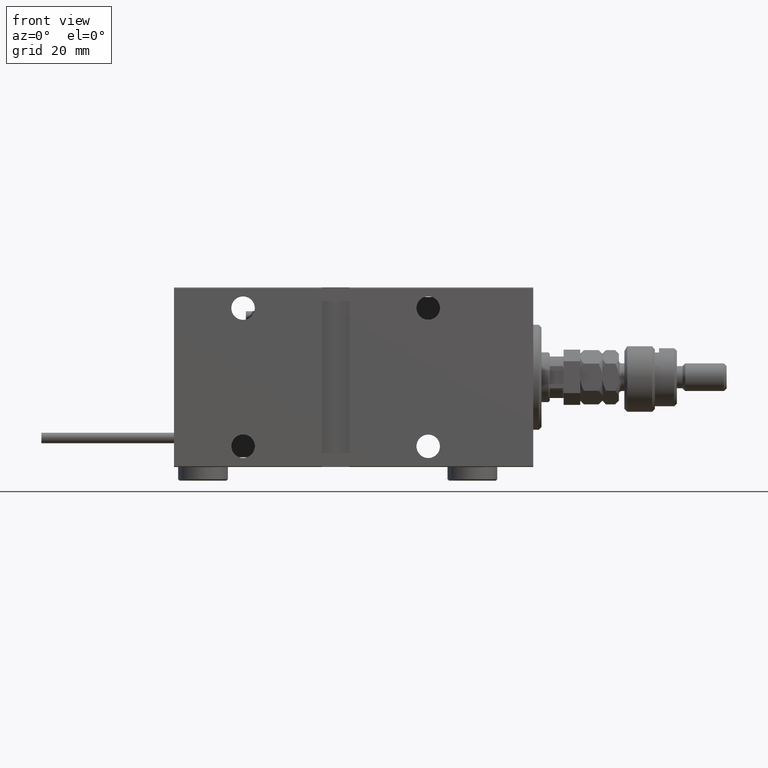
[diagram: clean part render]
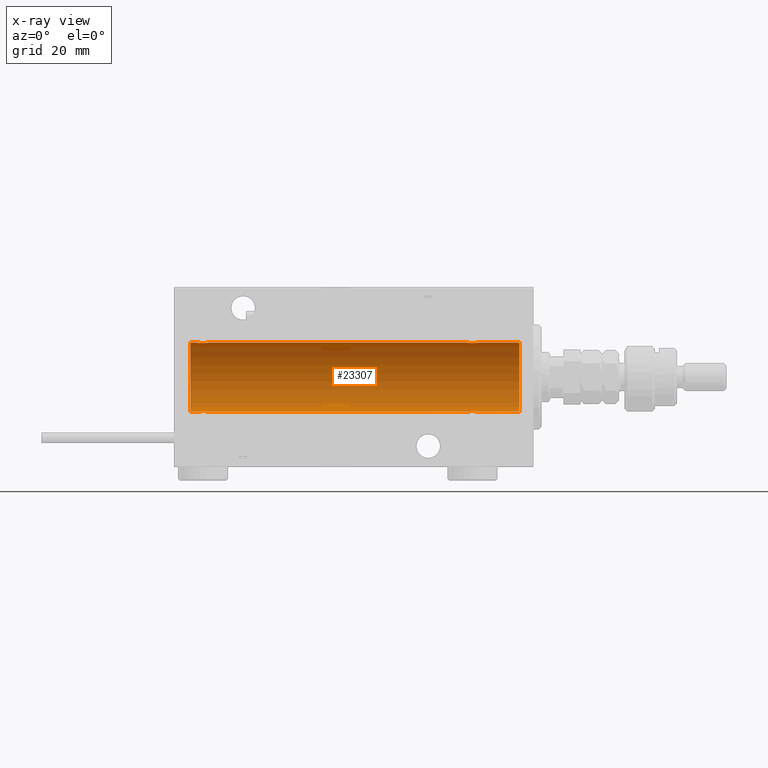
[diagram: x-ray — body ghosted, one internal face saturated and labeled with its STEP entity id]
A machine part, front view, then the same camera in x-ray: the body is ghosted and one INTERNAL B-rep face — a face not visible from any outside direction — is saturated and labeled: STEP entity #23307.
In plain terms, the highlighted cylindrical surface (edge-blend (fillet) strip) has radius 12.5 mm, axis along (1, 0, -0).
Its self-contained STEP definition (entity closure, byte-faithful):
#7 = EDGE_CURVE ( 'NONE', #18536, #1796, #49091, .T. ) ;
#449 = EDGE_CURVE ( 'NONE', #40514, #1387, #14810, .T. ) ;
#1090 = CARTESIAN_POINT ( 'NONE',  ( 19.99999999999999645, -3.966047509268588167E-15, -12.50000000000000000 ) ) ;
#1283 = CARTESIAN_POINT ( 'NONE',  ( 121.5000000000000284, -0.2612140938986731720, -12.50000000000000533 ) ) ;
#1387 = VERTEX_POINT ( 'NONE', #35021 ) ;
#1553 = CARTESIAN_POINT ( 'NONE',  ( 118.9830627330237434, -1.936441098420713214, -12.34912369794528963 ) ) ;
#1586 = CARTESIAN_POINT ( 'NONE',  ( 124.0000000000000000, 1.530808498934191521E-15, -12.50000000000000000 ) ) ;
#1796 = VERTEX_POINT ( 'NONE', #27532 ) ;
#2087 = CARTESIAN_POINT ( 'NONE',  ( 121.2356307801957769, -1.002396200863557185, -12.46022444231050308 ) ) ;
#2123 = LINE ( 'NONE', #1586, #32970 ) ;
#2264 = ORIENTED_EDGE ( 'NONE', *, *, #13662, .T. ) ;
#2598 = B_SPLINE_CURVE_WITH_KNOTS ( 'NONE', 3,
 ( #19893, #52269, #32227, #48668, #15771, #11116, #45110, #24273, #35529, #31421, #27561, #6727, #23458, #40184, #2608, #37441, #20707, #37166, #28669, #4985, #45384, #34602, #13205, #21729, #49500, #25812, #53611, #20434 ),
 .UNSPECIFIED., .F., .F.,
 ( 4, 2, 2, 2, 2, 2, 2, 2, 2, 2, 2, 2, 2, 4 ),
 ( 0.006262980370572162822, 0.007045658964677358610, 0.007436998261729958239, 0.007828337558782557867, 0.008219676855835158363, 0.008611016152887758859, 0.009002355449940359355, 0.009393694746992958117, 0.009785034044045558613, 0.01017637334109815911, 0.01056771263815075960, 0.01095905193520336010, 0.01174173052930856803, 0.01252440912341377596 ),
 .UNSPECIFIED. ) ;
#2608 = CARTESIAN_POINT ( 'NONE',  ( 21.86659749548704212, -1.999916920503819862, 12.33897614545467469 ) ) ;
#2857 = CARTESIAN_POINT ( 'NONE',  ( 119.6308996732342393, -2.000082296475560906, 12.33894933996983490 ) ) ;
#3036 = ORIENTED_EDGE ( 'NONE', *, *, #15565, .F. ) ;
#3127 = CARTESIAN_POINT ( 'NONE',  ( 121.5000000000000568, -0.2646816682749792982, 12.50000000000000178 ) ) ;
#3588 = CARTESIAN_POINT ( 'NONE',  ( 24.00000000000000000, 1.530808426277417854E-15, -12.50000000000000000 ) ) ;
#4867 = FACE_OUTER_BOUND ( 'NONE', #40480, .T. ) ;
#4942 = CARTESIAN_POINT ( 'NONE',  ( 21.35574721202270254, -1.897913903092048216, -12.35518060345725289 ) ) ;
#4985 = CARTESIAN_POINT ( 'NONE',  ( 22.88616153879432957, -1.797736511708064366, 12.37015393445321010 ) ) ;
#5646 = ORIENTED_EDGE ( 'NONE', *, *, #449, .T. ) ;
#6196 = CARTESIAN_POINT ( 'NONE',  ( 118.2814588045806232, -1.591305132013882462, -12.39851226212235957 ) ) ;
#6468 = CARTESIAN_POINT ( 'NONE',  ( 120.8229994310773776, -1.505544071529937078, -12.40934942683854381 ) ) ;
#6703 = CARTESIAN_POINT ( 'NONE',  ( 117.5000000000000142, -7.266434456262306043E-23, 12.50000000000000000 ) ) ;
#6727 = CARTESIAN_POINT ( 'NONE',  ( 21.35356103036408371, -1.897190184049190043, 12.35529285772521391 ) ) ;
#7509 = CARTESIAN_POINT ( 'NONE',  ( 117.9927784853201018, -1.321088093821075393, 12.43033959299025426 ) ) ;
#7730 = VERTEX_POINT ( 'NONE', #26527 ) ;
#8071 = LINE ( 'NONE', #45104, #31199 ) ;
#9050 = CARTESIAN_POINT ( 'NONE',  ( 20.67883287148555382, -1.507135374967702113, -12.40915432986587064 ) ) ;
#9321 = CARTESIAN_POINT ( 'NONE',  ( 21.11383846120565977, -1.797736511708062590, -12.37015393445320299 ) ) ;
#9504 = CARTESIAN_POINT ( 'NONE',  ( 120.7202714989742418, -1.589951752150277509, -12.39868561261689273 ) ) ;
#9663 = CARTESIAN_POINT ( 'NONE',  ( 19.99999999999999645, -7.265724481447607133E-23, 12.50000000000000000 ) ) ;
#10051 = CARTESIAN_POINT ( 'NONE',  ( 120.1464389696359518, -1.897190184049184269, -12.35529285772521391 ) ) ;
#10588 = CARTESIAN_POINT ( 'NONE',  ( 118.8557472120227345, -1.897913903092052657, -12.35518060345725111 ) ) ;
#10641 = B_SPLINE_CURVE_WITH_KNOTS ( 'NONE', 3,
 ( #3588, #16203, #32938, #37327, #12366, #17022, #49666, #45542, #12103, #29366, #46077, #28827, #25237, #50470, #12905, #24697, #29095, #41433, #4942, #9321, #26581, #47416, #9050, #35359, #21945, #22483, #46881, #1090 ),
 .UNSPECIFIED., .F., .F.,
 ( 4, 2, 2, 2, 2, 2, 2, 2, 2, 2, 2, 2, 2, 4 ),
 ( 0.006262980370572176700, 0.007045658964677374222, 0.007436998261729974719, 0.007828337558782575215, 0.008219676855835175711, 0.008611016152887777941, 0.009002355449940378437, 0.009393694746992978933, 0.009785034044045579429, 0.01017637334109817993, 0.01056771263815078042, 0.01095905193520338092, 0.01174173052930859058, 0.01252440912341379851 ),
 .UNSPECIFIED. ) ;
#11116 = CARTESIAN_POINT ( 'NONE',  ( 20.41018909771709744, -1.220538259806348114, 12.44075068685996754 ) ) ;
#11119 = VERTEX_POINT ( 'NONE', #30008 ) ;
#11189 = CARTESIAN_POINT ( 'NONE',  ( 121.5000000000000284, 1.530808426268740384E-15, -12.50000000000000000 ) ) ;
#11958 = CARTESIAN_POINT ( 'NONE',  ( 124.0000000000000000, 0.000000000000000000, 12.50000000000000000 ) ) ;
#12103 = CARTESIAN_POINT ( 'NONE',  ( 23.22027149897420273, -1.589951752150274178, -12.39868561261689273 ) ) ;
#12366 = CARTESIAN_POINT ( 'NONE',  ( 23.73563078019576977, -1.002396200863559628, -12.46022444231050663 ) ) ;
#12905 = CARTESIAN_POINT ( 'NONE',  ( 22.13340250451295077, -1.999916920503817641, -12.33897614545467469 ) ) ;
#13014 = VERTEX_POINT ( 'NONE', #20530 ) ;
#13205 = CARTESIAN_POINT ( 'NONE',  ( 23.32116712851443552, -1.507135374967700114, 12.40915432986586708 ) ) ;
#13233 = DIRECTION ( 'NONE',  ( 0.000000000000000000, 0.000000000000000000, 1.000000000000000000 ) ) ;
#13662 = EDGE_CURVE ( 'NONE', #11119, #18536, #10641, .T. ) ;
#13896 = CARTESIAN_POINT ( 'NONE',  ( 117.5533432010162187, -0.5275951738695822124, -12.49118442338578383 ) ) ;
#14379 = CARTESIAN_POINT ( 'NONE',  ( 24.00000000000000000, -2.019790789754703983E-15, 12.50000000000000000 ) ) ;
#14421 = EDGE_CURVE ( 'NONE', #30619, #17949, #30064, .T. ) ;
#14438 = CARTESIAN_POINT ( 'NONE',  ( 119.7639137310243882, -1.986793270638199882, -12.34112317291865146 ) ) ;
#14679 = CARTESIAN_POINT ( 'NONE',  ( 118.6112527420296772, -1.796480516834681573, 12.37033750336835958 ) ) ;
#14810 = B_SPLINE_CURVE_WITH_KNOTS ( 'NONE', 3,
 ( #23204, #1283, #39390, #18550, #2087, #44036, #43774, #6468, #9504, #30622, #26499, #10051, #22402, #14438, #34749, #35274, #48149, #1553, #10588, #52004, #34480, #6196, #18829, #30360, #35548, #13896, #42955, #52283 ),
 .UNSPECIFIED., .F., .F.,
 ( 4, 2, 2, 2, 2, 2, 2, 2, 2, 2, 2, 2, 2, 4 ),
 ( 0.006262980370572161955, 0.007045658964677351671, 0.007436998261729953902, 0.007828337558782556133, 0.008219676855835158363, 0.008611016152887760594, 0.009002355449940364560, 0.009393694746992966790, 0.009785034044045570756, 0.01017637334109817299, 0.01056771263815077522, 0.01095905193520337745, 0.01174173052930858364, 0.01252440912341378984 ),
 .UNSPECIFIED. ) ;
#14935 = CARTESIAN_POINT ( 'NONE',  ( 117.5000000000000142, -0.2612140938986747818, 12.50000000000000000 ) ) ;
#15208 = CARTESIAN_POINT ( 'NONE',  ( 121.5000000000000284, 3.163483401492493339E-15, 12.50000000000000000 ) ) ;
#15565 = EDGE_CURVE ( 'NONE', #13014, #30619, #52141, .T. ) ;
#15750 = CARTESIAN_POINT ( 'NONE',  ( 118.1770005689227219, -1.505544071529930639, 12.40934942683854025 ) ) ;
#15771 = CARTESIAN_POINT ( 'NONE',  ( 20.26436921980423378, -1.002396200863559850, 12.46022444231050841 ) ) ;
#16203 = CARTESIAN_POINT ( 'NONE',  ( 24.00000000000000711, -0.2612140938986742267, -12.50000000000000533 ) ) ;
#16309 = DIRECTION ( 'NONE',  ( -1.000000000000000000, -0.000000000000000000, -0.000000000000000000 ) ) ;
#16690 = EDGE_CURVE ( 'NONE', #31999, #25474, #8071, .T. ) ;
#16827 = DIRECTION ( 'NONE',  ( -1.000000000000000000, -0.000000000000000000, -0.000000000000000000 ) ) ;
#17022 = CARTESIAN_POINT ( 'NONE',  ( 23.58981090228289546, -1.220538259806347225, -12.44075068685997287 ) ) ;
#17626 = DIRECTION ( 'NONE',  ( -1.000000000000000000, 0.000000000000000000, 0.000000000000000000 ) ) ;
#17949 = VERTEX_POINT ( 'NONE', #26795 ) ;
#18358 = ORIENTED_EDGE ( 'NONE', *, *, #25383, .T. ) ;
#18536 = VERTEX_POINT ( 'NONE', #34576 ) ;
#18550 = CARTESIAN_POINT ( 'NONE',  ( 121.2978560646825912, -0.8858253204747998932, -12.46915613403960776 ) ) ;
#18792 = CARTESIAN_POINT ( 'NONE',  ( 121.0974477469102766, -1.231226695485355904, 12.44059298055988450 ) ) ;
#18829 = CARTESIAN_POINT ( 'NONE',  ( 118.1788328714855822, -1.507135374967708552, -12.40915432986586531 ) ) ;
#19063 = CARTESIAN_POINT ( 'NONE',  ( 120.5009979209850997, -1.736403706023266658, 12.37902502246767789 ) ) ;
#19600 = CARTESIAN_POINT ( 'NONE',  ( 121.2466213662089842, -1.008535157355832768, 12.46157701909768178 ) ) ;
#19606 = VECTOR ( 'NONE', #46650, 1000.000000000000000 ) ;
#19893 = CARTESIAN_POINT ( 'NONE',  ( 19.99999999999999645, -7.265724481447607133E-23, 12.50000000000000000 ) ) ;
#19963 = AXIS2_PLACEMENT_3D ( 'NONE', #49866, #21346, #37536 ) ;
#20434 = CARTESIAN_POINT ( 'NONE',  ( 24.00000000000000000, -2.019790789754703983E-15, 12.50000000000000000 ) ) ;
#20530 = CARTESIAN_POINT ( 'NONE',  ( 124.0000000000000000, 1.530808498934191521E-15, -12.50000000000000000 ) ) ;
#20707 = CARTESIAN_POINT ( 'NONE',  ( 22.26093497285606304, -1.987194304939079004, 12.34105826212746138 ) ) ;
#21222 = CARTESIAN_POINT ( 'NONE',  ( 124.0000000000000000, 0.000000000000000000, 12.50000000000000000 ) ) ;
#21346 = DIRECTION ( 'NONE',  ( -1.000000000000000000, -0.000000000000000000, -0.000000000000000000 ) ) ;
#21729 = CARTESIAN_POINT ( 'NONE',  ( 23.59744774691022684, -1.231226695485370337, 12.44059298055987917 ) ) ;
#21945 = CARTESIAN_POINT ( 'NONE',  ( 20.25337863379106551, -1.008535157355842760, -12.46157701909767646 ) ) ;
#22365 = VECTOR ( 'NONE', #46765, 1000.000000000000000 ) ;
#22402 = CARTESIAN_POINT ( 'NONE',  ( 120.0196147235787834, -1.935716533151644825, -12.34923763528285079 ) ) ;
#22483 = CARTESIAN_POINT ( 'NONE',  ( 20.05334320101619738, -0.5275951738695680016, -12.49118442338578561 ) ) ;
#23204 = CARTESIAN_POINT ( 'NONE',  ( 121.5000000000000284, 1.530808426268740384E-15, -12.50000000000000000 ) ) ;
#23307 = ADVANCED_FACE ( 'NONE', ( #4867 ), #42172, .F. ) ;
#23458 = CARTESIAN_POINT ( 'NONE',  ( 21.48038527642126283, -1.935716533151644381, 12.34923763528284901 ) ) ;
#23974 = CARTESIAN_POINT ( 'NONE',  ( 118.8535610303640624, -1.897190184049181161, 12.35529285772521213 ) ) ;
#24229 = CARTESIAN_POINT ( 'NONE',  ( 5.000000000000004441, 0.000000000000000000, 0.000000000000000000 ) ) ;
#24273 = CARTESIAN_POINT ( 'NONE',  ( 20.67700056892266502, -1.505544071529936634, 12.40934942683854025 ) ) ;
#24275 = ORIENTED_EDGE ( 'NONE', *, *, #24669, .T. ) ;
#24462 = ORIENTED_EDGE ( 'NONE', *, *, #47395, .T. ) ;
#24669 = EDGE_CURVE ( 'NONE', #31999, #17949, #40055, .T. ) ;
#24697 = CARTESIAN_POINT ( 'NONE',  ( 21.86910032676576421, -2.000082296475566679, -12.33894933996983490 ) ) ;
#25237 = CARTESIAN_POINT ( 'NONE',  ( 22.51961472357874072, -1.935716533151642604, -12.34923763528285257 ) ) ;
#25383 = EDGE_CURVE ( 'NONE', #1387, #11119, #2123, .T. ) ;
#25474 = VERTEX_POINT ( 'NONE', #14379 ) ;
#25812 = CARTESIAN_POINT ( 'NONE',  ( 23.94665679898379906, -0.5275951738695691118, 12.49118442338578561 ) ) ;
#25821 = LINE ( 'NONE', #42284, #19606 ) ;
#26037 = EDGE_CURVE ( 'NONE', #38032, #7730, #33834, .T. ) ;
#26198 = CARTESIAN_POINT ( 'NONE',  ( 124.0000000000000000, 0.000000000000000000, 12.50000000000000000 ) ) ;
#26499 = CARTESIAN_POINT ( 'NONE',  ( 120.3887472579704223, -1.796480516834683350, -12.37033750336835602 ) ) ;
#26527 = CARTESIAN_POINT ( 'NONE',  ( 5.000000000000004441, 0.000000000000000000, 12.50000000000000000 ) ) ;
#26581 = CARTESIAN_POINT ( 'NONE',  ( 20.99900207901491811, -1.736403706023273097, -12.37902502246767966 ) ) ;
#26795 = CARTESIAN_POINT ( 'NONE',  ( 121.5000000000000284, 3.163483401492493339E-15, 12.50000000000000000 ) ) ;
#27340 = DIRECTION ( 'NONE',  ( -1.000000000000000000, -0.000000000000000000, -0.000000000000000000 ) ) ;
#27532 = CARTESIAN_POINT ( 'NONE',  ( 5.000000000000004441, 1.530808498934191521E-15, -12.50000000000000000 ) ) ;
#27541 = CARTESIAN_POINT ( 'NONE',  ( 117.5525565942766946, -0.5247436444070334716, 12.49130933415156441 ) ) ;
#27561 = CARTESIAN_POINT ( 'NONE',  ( 21.11125274202960256, -1.796480516834689567, 12.37033750336835602 ) ) ;
#28088 = CARTESIAN_POINT ( 'NONE',  ( 118.9803852764212735, -1.935716533151639718, 12.34923763528284546 ) ) ;
#28669 = CARTESIAN_POINT ( 'NONE',  ( 22.64425278797729746, -1.897913903092049104, 12.35518060345724933 ) ) ;
#28827 = CARTESIAN_POINT ( 'NONE',  ( 22.64643896963591985, -1.897190184049187378, -12.35529285772521924 ) ) ;
#28936 = ORIENTED_EDGE ( 'NONE', *, *, #14421, .F. ) ;
#29095 = CARTESIAN_POINT ( 'NONE',  ( 21.73906502714393341, -1.987194304939077671, -12.34105826212746138 ) ) ;
#29172 = CARTESIAN_POINT ( 'NONE',  ( 117.5000000000000142, -7.266434456262306043E-23, 12.50000000000000000 ) ) ;
#29366 = CARTESIAN_POINT ( 'NONE',  ( 23.00345574076691690, -1.734959850168409812, -12.37922718965050528 ) ) ;
#30008 = CARTESIAN_POINT ( 'NONE',  ( 24.00000000000000000, 1.530808426277417854E-15, -12.50000000000000000 ) ) ;
#30064 = LINE ( 'NONE', #26198, #22365 ) ;
#30360 = CARTESIAN_POINT ( 'NONE',  ( 117.9025522530897661, -1.231226695485379219, -12.44059298055988094 ) ) ;
#30619 = VERTEX_POINT ( 'NONE', #11958 ) ;
#30622 = CARTESIAN_POINT ( 'NONE',  ( 120.5034557407669240, -1.734959850168412476, -12.37922718965050528 ) ) ;
#30883 = EDGE_CURVE ( 'NONE', #1796, #7730, #51485, .T. ) ;
#31199 = VECTOR ( 'NONE', #16309, 1000.000000000000000 ) ;
#31421 = CARTESIAN_POINT ( 'NONE',  ( 20.99654425923307599, -1.734959850168413142, 12.37922718965050528 ) ) ;
#31658 = CARTESIAN_POINT ( 'NONE',  ( 120.0169372669763135, -1.936441098420705220, 12.34912369794528786 ) ) ;
#31929 = CARTESIAN_POINT ( 'NONE',  ( 117.7021439353173946, -0.8858253204748003373, 12.46915613403960421 ) ) ;
#31999 = VERTEX_POINT ( 'NONE', #29172 ) ;
#32227 = CARTESIAN_POINT ( 'NONE',  ( 20.05255659427669812, -0.5247436444070349149, 12.49130933415156974 ) ) ;
#32490 = DIRECTION ( 'NONE',  ( 0.000000000000000000, 0.000000000000000000, 1.000000000000000000 ) ) ;
#32938 = CARTESIAN_POINT ( 'NONE',  ( 23.94744340572329833, -0.5247436444070325834, -12.49130933415156619 ) ) ;
#32970 = VECTOR ( 'NONE', #27340, 1000.000000000000000 ) ;
#33834 = LINE ( 'NONE', #21222, #35511 ) ;
#34480 = CARTESIAN_POINT ( 'NONE',  ( 118.4990020790149146, -1.736403706023274651, -12.37902502246767611 ) ) ;
#34576 = CARTESIAN_POINT ( 'NONE',  ( 19.99999999999999645, -3.966047509268588167E-15, -12.50000000000000000 ) ) ;
#34602 = CARTESIAN_POINT ( 'NONE',  ( 23.21854119541937678, -1.591305132013879131, 12.39851226212236135 ) ) ;
#34749 = CARTESIAN_POINT ( 'NONE',  ( 119.6334025045129863, -1.999916920503819862, -12.33897614545467469 ) ) ;
#34992 = ORIENTED_EDGE ( 'NONE', *, *, #26037, .F. ) ;
#35021 = CARTESIAN_POINT ( 'NONE',  ( 117.5000000000000142, -1.169483437805093529E-14, -12.50000000000000000 ) ) ;
#35274 = CARTESIAN_POINT ( 'NONE',  ( 119.3691003267658459, -2.000082296475571120, -12.33894933996983134 ) ) ;
#35359 = CARTESIAN_POINT ( 'NONE',  ( 20.40255225308977671, -1.231226695485372336, -12.44059298055988627 ) ) ;
#35511 = VECTOR ( 'NONE', #16827, 1000.000000000000000 ) ;
#35512 = AXIS2_PLACEMENT_3D ( 'NONE', #41256, #44824, #32490 ) ;
#35529 = CARTESIAN_POINT ( 'NONE',  ( 20.77972850102579372, -1.589951752150277953, 12.39868561261689095 ) ) ;
#35548 = CARTESIAN_POINT ( 'NONE',  ( 117.7533786337911152, -1.008535157355854750, -12.46157701909767823 ) ) ;
#35784 = CARTESIAN_POINT ( 'NONE',  ( 118.2797285010258008, -1.589951752150278397, 12.39868561261688740 ) ) ;
#36047 = CARTESIAN_POINT ( 'NONE',  ( 119.2360862689757113, -1.986793270638193443, 12.34112317291865146 ) ) ;
#36601 = CARTESIAN_POINT ( 'NONE',  ( 120.8211671285144604, -1.507135374967687458, 12.40915432986586886 ) ) ;
#37166 = CARTESIAN_POINT ( 'NONE',  ( 22.51693726697628506, -1.936441098420709439, 12.34912369794528786 ) ) ;
#37327 = CARTESIAN_POINT ( 'NONE',  ( 23.79785606468258052, -0.8858253204748001153, -12.46915613403960954 ) ) ;
#37441 = CARTESIAN_POINT ( 'NONE',  ( 22.13089967323422158, -2.000082296475567567, 12.33894933996983134 ) ) ;
#37536 = DIRECTION ( 'NONE',  ( 0.000000000000000000, 0.000000000000000000, 1.000000000000000000 ) ) ;
#38032 = VERTEX_POINT ( 'NONE', #9663 ) ;
#38493 = ORIENTED_EDGE ( 'NONE', *, *, #52226, .T. ) ;
#39390 = CARTESIAN_POINT ( 'NONE',  ( 121.4474434057233339, -0.5247436444070315842, -12.49130933415156797 ) ) ;
#39894 = CARTESIAN_POINT ( 'NONE',  ( 117.9101890977171223, -1.220538259806350778, 12.44075068685996754 ) ) ;
#40055 = B_SPLINE_CURVE_WITH_KNOTS ( 'NONE', 3,
 ( #6703, #14935, #27541, #31929, #53319, #39894, #7509, #15750, #35784, #53047, #14679, #23974, #28088, #36047, #40430, #2857, #43994, #31658, #52776, #45090, #19063, #52242, #36601, #18792, #19600, #44268, #3127, #15208 ),
 .UNSPECIFIED., .F., .F.,
 ( 4, 2, 2, 2, 2, 2, 2, 2, 2, 2, 2, 2, 2, 4 ),
 ( 0.006262980370572151546, 0.007045658964677331722, 0.007436998261729929616, 0.007828337558782528377, 0.008219676855835125404, 0.008611016152887724165, 0.009002355449940321191, 0.009393694746992919953, 0.009785034044045518714, 0.01017637334109811748, 0.01056771263815071624, 0.01095905193520331326, 0.01174173052930854028, 0.01252440912341376555 ),
 .UNSPECIFIED. ) ;
#40184 = CARTESIAN_POINT ( 'NONE',  ( 21.73608626897564733, -1.986793270638199882, 12.34112317291865146 ) ) ;
#40322 = CARTESIAN_POINT ( 'NONE',  ( 124.0000000000000000, 1.530808498934191521E-15, -12.50000000000000000 ) ) ;
#40430 = CARTESIAN_POINT ( 'NONE',  ( 119.3665974954870705, -1.999916920503812534, 12.33897614545467647 ) ) ;
#40480 = EDGE_LOOP ( 'NONE', ( #3036, #24462, #5646, #18358, #2264, #47243, #50012, #34992, #38493, #49281, #24275, #28936 ) ) ;
#40514 = VERTEX_POINT ( 'NONE', #11189 ) ;
#41256 = CARTESIAN_POINT ( 'NONE',  ( 124.0000000000000000, 0.000000000000000000, 0.000000000000000000 ) ) ;
#41433 = CARTESIAN_POINT ( 'NONE',  ( 21.48306273302371494, -1.936441098420707663, -12.34912369794528431 ) ) ;
#42172 = CYLINDRICAL_SURFACE ( 'NONE', #19963, 12.50000000000000000 ) ;
#42284 = CARTESIAN_POINT ( 'NONE',  ( 124.0000000000000000, 1.530808498934191521E-15, -12.50000000000000000 ) ) ;
#42661 = VECTOR ( 'NONE', #45260, 1000.000000000000000 ) ;
#42955 = CARTESIAN_POINT ( 'NONE',  ( 117.4999999999999716, -0.2646816682749930094, -12.49999999999999289 ) ) ;
#43774 = CARTESIAN_POINT ( 'NONE',  ( 121.0072215146799408, -1.321088093821078502, -12.43033959299025071 ) ) ;
#43994 = CARTESIAN_POINT ( 'NONE',  ( 119.7609349728560630, -1.987194304939074341, 12.34105826212746138 ) ) ;
#44036 = CARTESIAN_POINT ( 'NONE',  ( 121.0898109022829203, -1.220538259806346115, -12.44075068685996932 ) ) ;
#44268 = CARTESIAN_POINT ( 'NONE',  ( 121.4466567989838524, -0.5275951738695600080, 12.49118442338578561 ) ) ;
#44824 = DIRECTION ( 'NONE',  ( -1.000000000000000000, 0.000000000000000000, 0.000000000000000000 ) ) ;
#45090 = CARTESIAN_POINT ( 'NONE',  ( 120.3861615387943544, -1.797736511708053264, 12.37015393445321010 ) ) ;
#45104 = CARTESIAN_POINT ( 'NONE',  ( 124.0000000000000000, 0.000000000000000000, 12.50000000000000000 ) ) ;
#45110 = CARTESIAN_POINT ( 'NONE',  ( 20.49277848532006274, -1.321088093821079168, 12.43033959299025071 ) ) ;
#45260 = DIRECTION ( 'NONE',  ( -1.000000000000000000, -0.000000000000000000, -0.000000000000000000 ) ) ;
#45384 = CARTESIAN_POINT ( 'NONE',  ( 23.00099792098507834, -1.736403706023272875, 12.37902502246767789 ) ) ;
#45542 = CARTESIAN_POINT ( 'NONE',  ( 23.32299943107733498, -1.505544071529932637, -12.40934942683853848 ) ) ;
#46077 = CARTESIAN_POINT ( 'NONE',  ( 22.88874725797039744, -1.796480516834686680, -12.37033750336835247 ) ) ;
#46650 = DIRECTION ( 'NONE',  ( -1.000000000000000000, -0.000000000000000000, -0.000000000000000000 ) ) ;
#46765 = DIRECTION ( 'NONE',  ( -1.000000000000000000, -0.000000000000000000, -0.000000000000000000 ) ) ;
#46881 = CARTESIAN_POINT ( 'NONE',  ( 20.00000000000000000, -0.2646816682749830729, -12.50000000000000000 ) ) ;
#47243 = ORIENTED_EDGE ( 'NONE', *, *, #7, .T. ) ;
#47395 = EDGE_CURVE ( 'NONE', #13014, #40514, #25821, .T. ) ;
#47416 = CARTESIAN_POINT ( 'NONE',  ( 20.78145880458061256, -1.591305132013880685, -12.39851226212235957 ) ) ;
#48149 = CARTESIAN_POINT ( 'NONE',  ( 119.2390650271439370, -1.987194304939082556, -12.34105826212746138 ) ) ;
#48668 = CARTESIAN_POINT ( 'NONE',  ( 20.20214393531741237, -0.8858253204748030019, 12.46915613403961132 ) ) ;
#49091 = LINE ( 'NONE', #40322, #42661 ) ;
#49281 = ORIENTED_EDGE ( 'NONE', *, *, #16690, .F. ) ;
#49500 = CARTESIAN_POINT ( 'NONE',  ( 23.74662136620892383, -1.008535157355843648, 12.46157701909767823 ) ) ;
#49666 = CARTESIAN_POINT ( 'NONE',  ( 23.50722151467993726, -1.321088093821075837, -12.43033959299025248 ) ) ;
#49720 = AXIS2_PLACEMENT_3D ( 'NONE', #24229, #17626, #13233 ) ;
#49866 = CARTESIAN_POINT ( 'NONE',  ( 124.0000000000000000, 0.000000000000000000, 0.000000000000000000 ) ) ;
#50012 = ORIENTED_EDGE ( 'NONE', *, *, #30883, .T. ) ;
#50470 = CARTESIAN_POINT ( 'NONE',  ( 22.26391373102435622, -1.986793270638196995, -12.34112317291864791 ) ) ;
#51485 = CIRCLE ( 'NONE', #49720, 12.50000000000000000 ) ;
#52004 = CARTESIAN_POINT ( 'NONE',  ( 118.6138384612056456, -1.797736511708069473, -12.37015393445320477 ) ) ;
#52141 = CIRCLE ( 'NONE', #35512, 12.50000000000000000 ) ;
#52226 = EDGE_CURVE ( 'NONE', #38032, #25474, #2598, .T. ) ;
#52242 = CARTESIAN_POINT ( 'NONE',  ( 120.7185411954193910, -1.591305132013873358, 12.39851226212235957 ) ) ;
#52269 = CARTESIAN_POINT ( 'NONE',  ( 20.00000000000000000, -0.2612140938986765581, 12.50000000000000000 ) ) ;
#52283 = CARTESIAN_POINT ( 'NONE',  ( 117.5000000000000142, -1.169483437805093529E-14, -12.50000000000000000 ) ) ;
#52776 = CARTESIAN_POINT ( 'NONE',  ( 120.1442527879773081, -1.897913903092038890, 12.35518060345724933 ) ) ;
#53047 = CARTESIAN_POINT ( 'NONE',  ( 118.4965442592331613, -1.734959850168412254, 12.37922718965051061 ) ) ;
#53319 = CARTESIAN_POINT ( 'NONE',  ( 117.7643692198042658, -1.002396200863564291, 12.46022444231050663 ) ) ;
#53611 = CARTESIAN_POINT ( 'NONE',  ( 23.99999999999998934, -0.2646816682749779659, 12.49999999999999822 ) ) ;